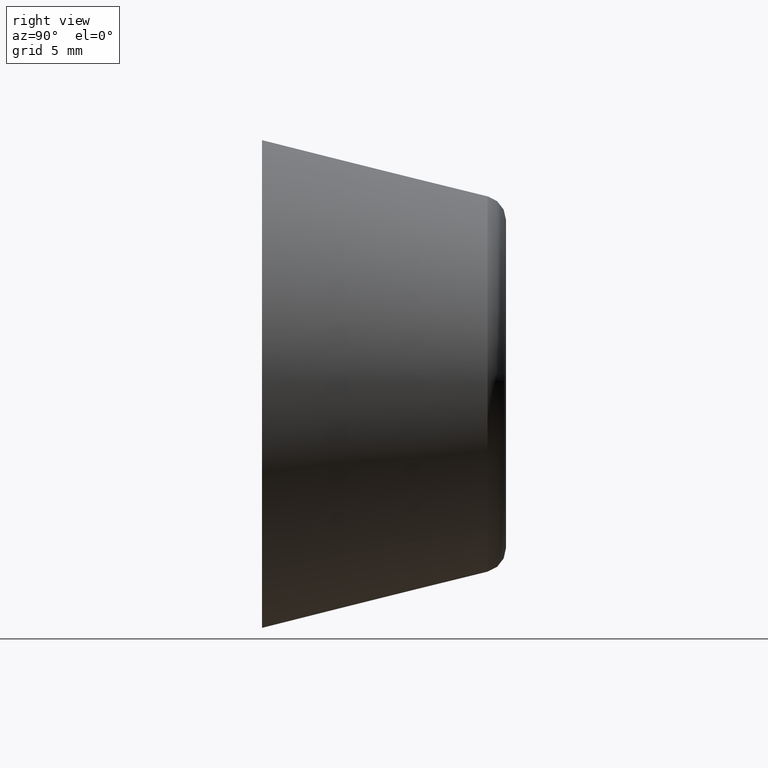
[diagram: clean part render]
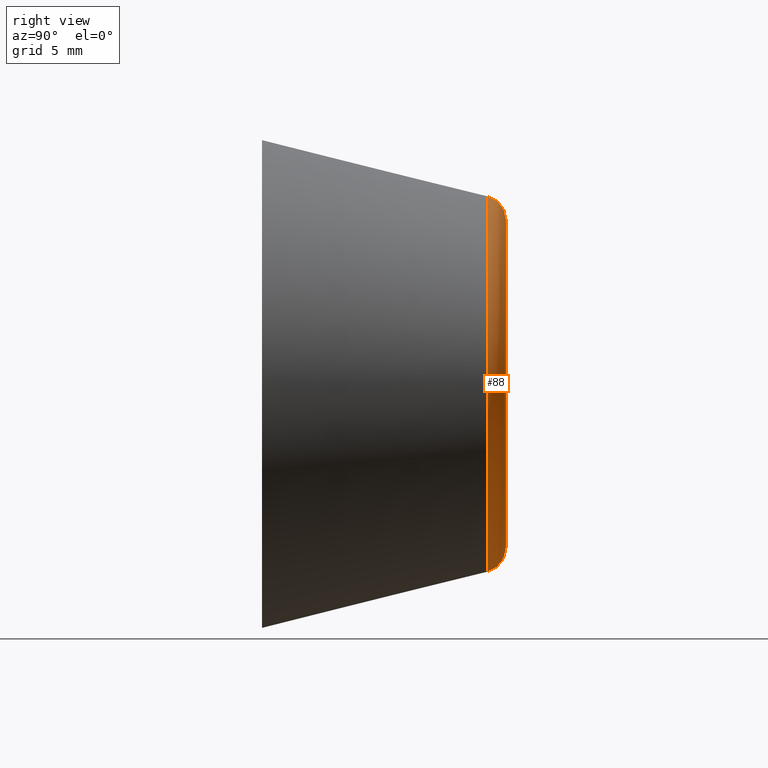
[diagram: same view with one face highlighted and labeled with its STEP entity id]
A machine part, right view. The second image highlights one B-rep face of the part: STEP entity #88.
In plain terms, the highlighted toroidal blend (fillet) surface has major radius 6.7192 mm and minor (blend) radius 1 mm.
Its self-contained STEP definition (entity closure, byte-faithful):
#24=FACE_BOUND('',#39,.T.);
#31=FACE_OUTER_BOUND('',#38,.T.);
#38=EDGE_LOOP('',(#73));
#39=EDGE_LOOP('',(#74));
#52=CIRCLE('',#98,6.71922359359558);
#53=CIRCLE('',#99,7.68936609374092);
#59=VERTEX_POINT('',#143);
#60=VERTEX_POINT('',#145);
#66=EDGE_CURVE('',#59,#59,#52,.T.);
#67=EDGE_CURVE('',#60,#60,#53,.T.);
#73=ORIENTED_EDGE('',*,*,#66,.T.);
#74=ORIENTED_EDGE('',*,*,#67,.T.);
#87=TOROIDAL_SURFACE('',#97,6.71922359359558,1.);
#88=ADVANCED_FACE('',(#31,#24),#87,.T.);
#97=AXIS2_PLACEMENT_3D('',#142,#113,#114);
#98=AXIS2_PLACEMENT_3D('',#144,#115,#116);
#99=AXIS2_PLACEMENT_3D('',#146,#117,#118);
#113=DIRECTION('center_axis',(0.,-1.,0.));
#114=DIRECTION('ref_axis',(0.,0.,-1.));
#115=DIRECTION('center_axis',(0.,-1.,0.));
#116=DIRECTION('ref_axis',(-1.,0.,1.22464679914735E-16));
#117=DIRECTION('center_axis',(0.,1.,0.));
#118=DIRECTION('ref_axis',(-1.,0.,1.22464679914735E-16));
#142=CARTESIAN_POINT('Origin',(0.,9.,0.));
#143=CARTESIAN_POINT('',(-8.22867566665221E-16,10.,6.71922359359558));
#144=CARTESIAN_POINT('Origin',(0.,10.,0.));
#145=CARTESIAN_POINT('',(-7.68936609374092,9.24253562503633,9.416757574172E-16));
#146=CARTESIAN_POINT('Origin',(0.,9.24253562503633,0.));